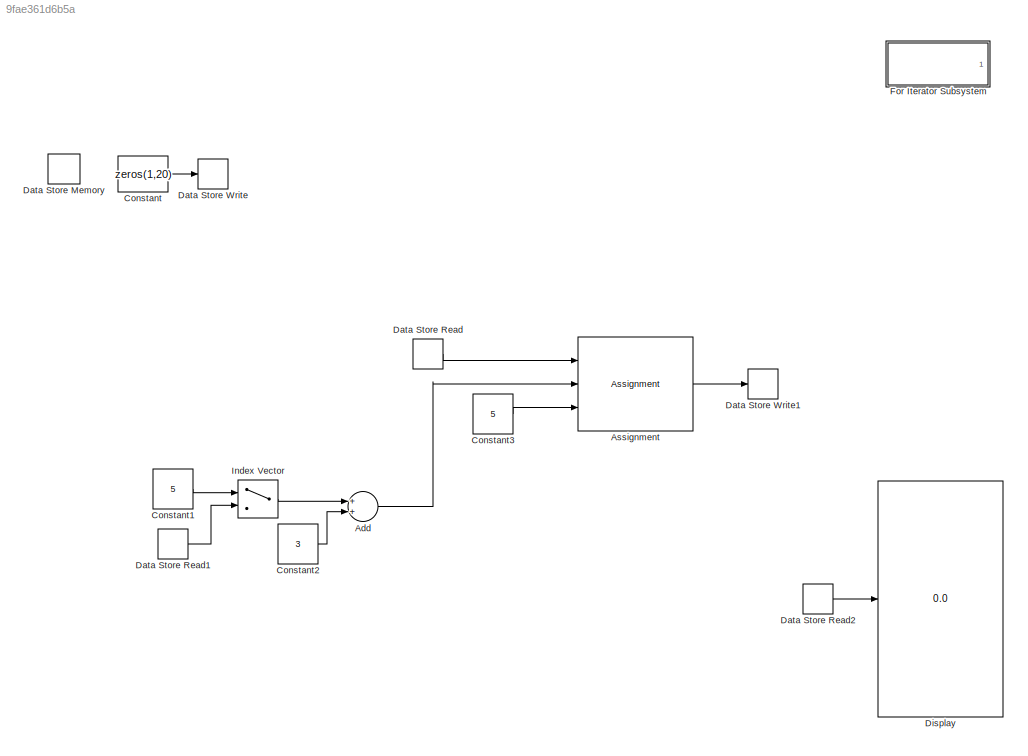
MODEL slx_9fae361d6b5a
KIND model
CONFIG AbsTol = auto
CONFIG EnableMultiTasking = off
CONFIG FixedStep = auto
CONFIG MaxStep = auto
CONFIG MinStep = auto
CONFIG RelTol = 1e-3
CONFIG SampleTimeConstraint = Unconstrained
CONFIG Solver = VariableStepAuto
CONFIG SolverName = VariableStepAuto
CONFIG StartTime = 0.0
CONFIG StopTime = 10.0
BLOCK [Sum] Add
  Commented = on
  InputSameDT = off
  OutDataTypeStr = Inherit: Inherit via internal rule
  Ports = [2, 1]
  SaturateOnIntegerOverflow = off
BLOCK [Assignment] Assignment
  Commented = on
  DiagnosticForDimensions = Warning
  IndexOptions = Index vector (port)
  Indices = 1
  OutputSizes = 1
  Ports = [3, 1]
BLOCK [Constant] Constant
  Priority = 0
  SampleTime = -1
  Value = zeros(1,20)
  VectorParams1D = off
BLOCK [Constant] Constant1
  Commented = on
  SampleTime = -1
  Value = 5
  VectorParams1D = off
BLOCK [Constant] Constant2
  Commented = on
  SampleTime = -1
  Value = 3
  VectorParams1D = off
BLOCK [Constant] Constant3
  Commented = on
  SampleTime = -1
  Value = 5
  VectorParams1D = off
BLOCK [DataStoreMemory] Data Store Memory
  Dimensions = [1 10]
  ReadBeforeWriteMsg = warning
  ShowAdditionalParam = off
  WriteAfterReadMsg = warning
  WriteAfterWriteMsg = warning
BLOCK [DataStoreRead] Data Store Read
  Commented = on
  Ports = [0, 1]
BLOCK [DataStoreRead] Data Store Read1
  Commented = on
  Ports = [0, 1]
BLOCK [DataStoreRead] Data Store Read2
  Ports = [0, 1]
BLOCK [DataStoreWrite] Data Store Write
  DataStoreElements = A(:)
  Ports = [1]
BLOCK [DataStoreWrite] Data Store Write1
  Commented = on
  DataStoreElements = A(:)
  Ports = [1]
BLOCK [Display] Display
  Decimation = 1
  Ports = [1]
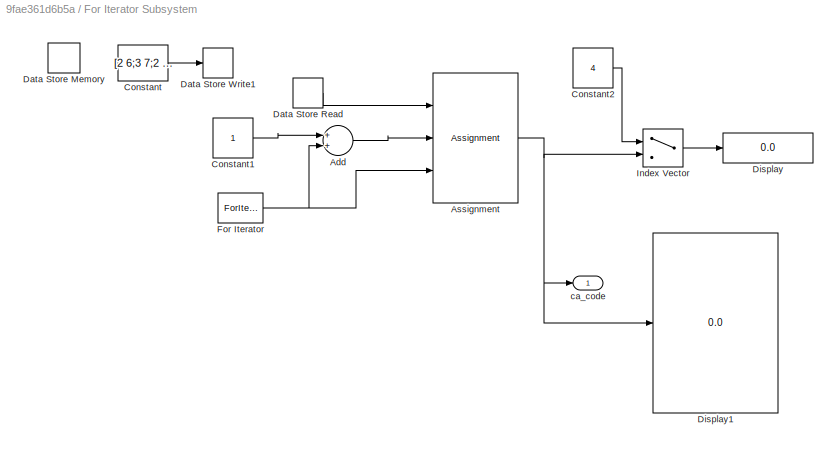
BLOCK [SubSystem] For Iterator Subsystem
  Ports = [0, 1]
  RequestExecContextInheritance = off
  TreatAsAtomicUnit = on
BLOCK [Sum] For Iterator Subsystem/Add
  InputSameDT = off
  OutDataTypeStr = Inherit: Inherit via internal rule
  Ports = [2, 1]
  SaturateOnIntegerOverflow = off
BLOCK [Assignment] For Iterator Subsystem/Assignment
  DiagnosticForDimensions = Warning
  IndexOptions = Index vector (port)
  Indices = [1:1023]
  OutputSizes = 1
  Ports = [3, 1]
BLOCK [Constant] For Iterator Subsystem/Constant
  Priority = 0
  SampleTime = -1
  Value = [2 6;3 7;2 6;3 7;4 8;5 9;1 9;2 10;1 8;2 9;3 10;2 3;3 4;5 6;6 7;7 8;8 9;9 10;1 4;2 5;3 6;4 7;5 8;6 9;1 3;4 6;5 7;6 8;7 9;8 10;1 6;2 7;3 8;4 9;5 10;4 10;1 7;2 8;4 10]
  VectorParams1D = off
BLOCK [Constant] For Iterator Subsystem/Constant1
  SampleTime = -1
  VectorParams1D = off
BLOCK [Constant] For Iterator Subsystem/Constant2
  SampleTime = -1
  Value = 4
  VectorParams1D = off
BLOCK [DataStoreMemory] For Iterator Subsystem/Data Store Memory
  Dimensions = [1 5]
  ReadBeforeWriteMsg = warning
  ShowAdditionalParam = off
  WriteAfterReadMsg = warning
  WriteAfterWriteMsg = warning
BLOCK [DataStoreRead] For Iterator Subsystem/Data Store Read
  Ports = [0, 1]
BLOCK [DataStoreWrite] For Iterator Subsystem/Data Store Write1
  DataStoreElements = A(:)
  Ports = [1]
BLOCK [Display] For Iterator Subsystem/Display
  Decimation = 1
  Ports = [1]
BLOCK [Display] For Iterator Subsystem/Display1
  Decimation = 1
  Ports = [1]
BLOCK [ForIterator] For Iterator Subsystem/For Iterator
  Ports = [0, 1]
BLOCK [MultiPortSwitch] For Iterator Subsystem/Index Vector
  InputSameDT = off
  Inputs = 1
  Ports = [2, 1]
  SaturateOnIntegerOverflow = off
BLOCK [Outport] For Iterator Subsystem/ca_code
  IconDisplay = Port number
BLOCK [MultiPortSwitch] Index Vector
  Commented = on
  DataPortOrder = Zero-based contiguous
  InputSameDT = off
  Inputs = 1
  Ports = [2, 1]
  SaturateOnIntegerOverflow = off
  zeroidx = on
LINE Add:1 -> Assignment:2
LINE Assignment:1 -> Data Store Write1:1
LINE Constant1:1 -> Index Vector:1
LINE Constant2:1 -> Add:2
LINE Constant3:1 -> Assignment:3
LINE Constant:1 -> Data Store Write:1
LINE Data Store Read1:1 -> Index Vector:2
LINE Data Store Read2:1 -> Display:1
LINE Data Store Read:1 -> Assignment:1
LINE For Iterator Subsystem/Add:1 -> For Iterator Subsystem/Assignment:2
NET For Iterator Subsystem/Assignment:1 -> For Iterator Subsystem/Display1:1, For Iterator Subsystem/Index Vector:2, For Iterator Subsystem/ca_code:1
LINE For Iterator Subsystem/Constant1:1 -> For Iterator Subsystem/Add:1
LINE For Iterator Subsystem/Constant2:1 -> For Iterator Subsystem/Index Vector:1
LINE For Iterator Subsystem/Constant:1 -> For Iterator Subsystem/Data Store Write1:1
LINE For Iterator Subsystem/Data Store Read:1 -> For Iterator Subsystem/Assignment:1
NET For Iterator Subsystem/For Iterator:1 -> For Iterator Subsystem/Add:2, For Iterator Subsystem/Assignment:3
LINE For Iterator Subsystem/Index Vector:1 -> For Iterator Subsystem/Display:1
LINE Index Vector:1 -> Add:1
note: NET lines group one-source signal fan-out (src -> all destinations, sorted); 1:1 wires keep LINE
